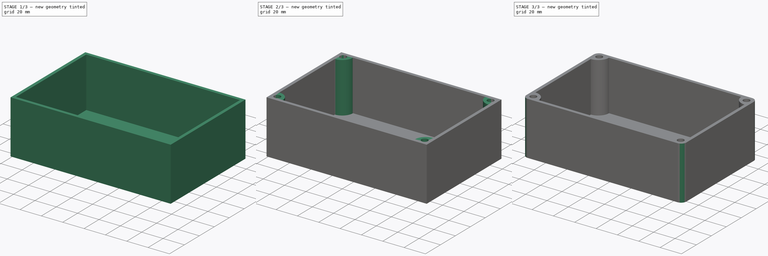
[diagram: build sequence overview — one tinted view per stage of 3, left to right]
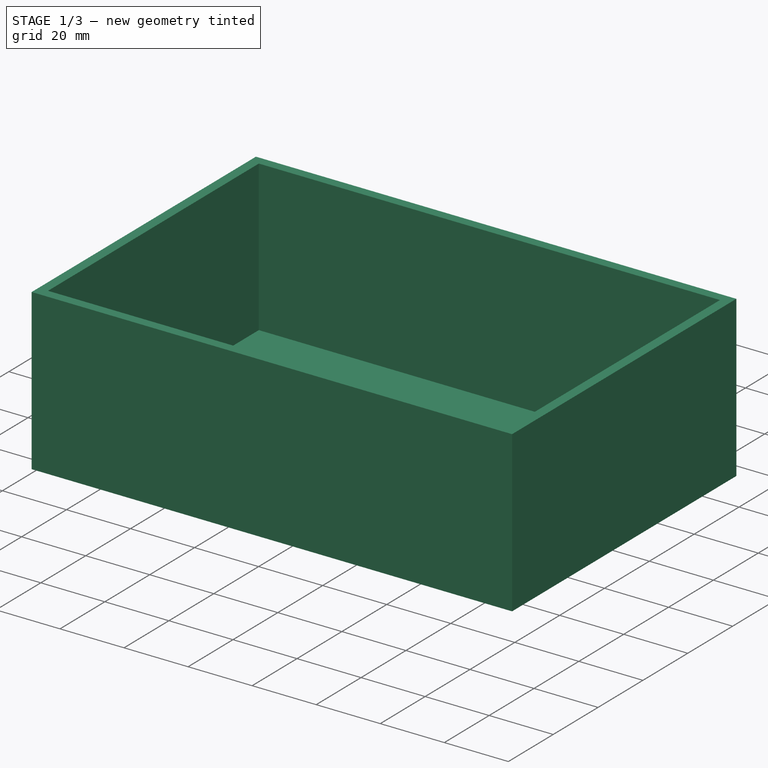
[diagram: stage 1 of 3 — iso view after this stage's code; geometry added in this stage tinted green]
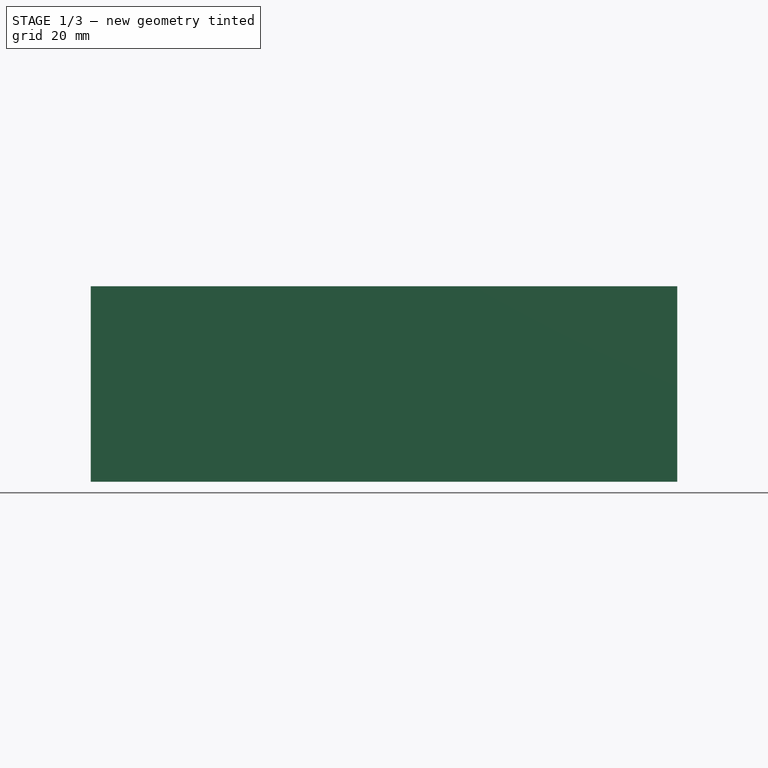
[diagram: stage 1 of 3 — front view after this stage's code; geometry added in this stage tinted green]
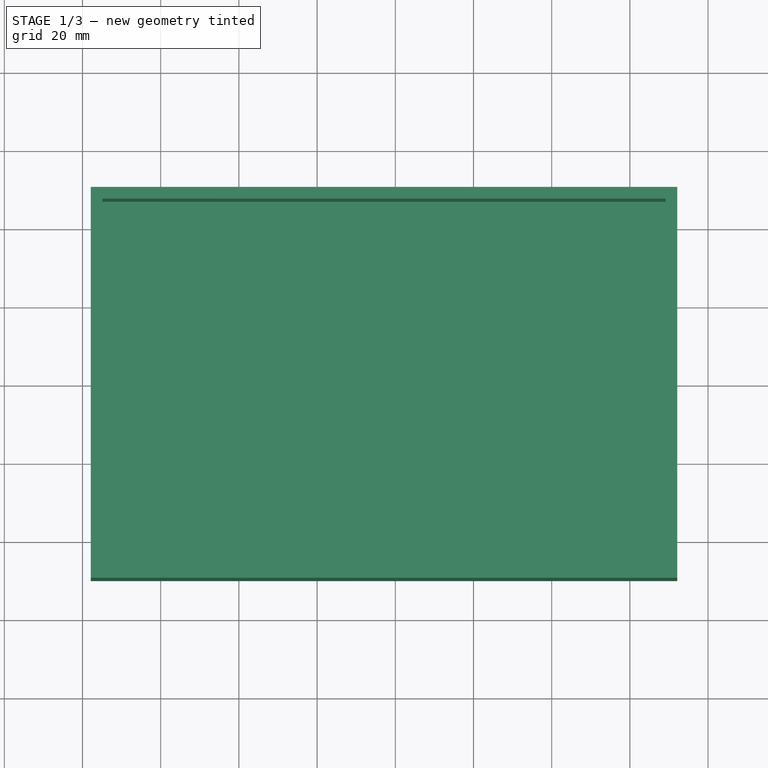
[diagram: stage 1 of 3 — top view after this stage's code; geometry added in this stage tinted green]
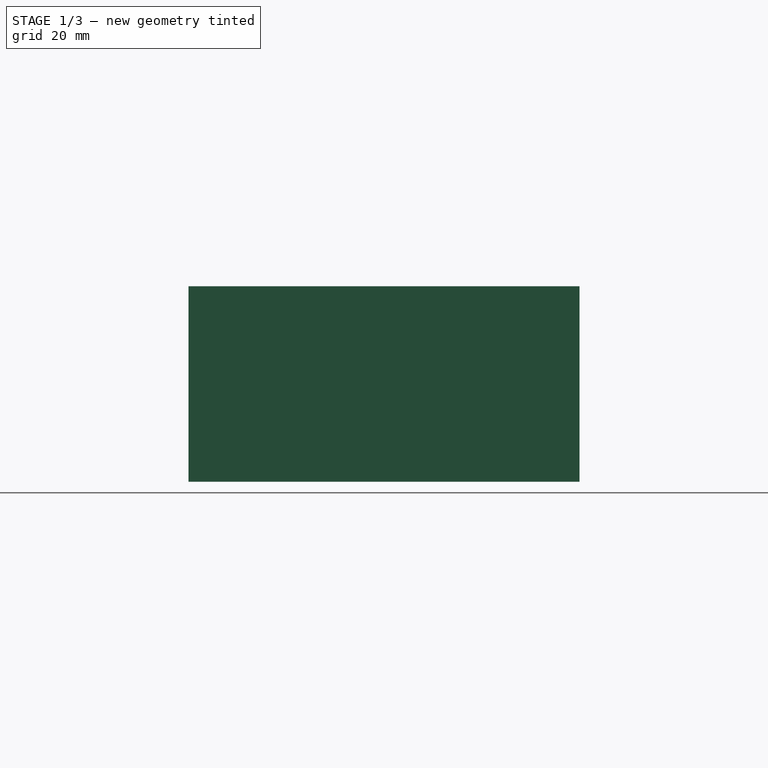
[diagram: stage 1 of 3 — right view after this stage's code; geometry added in this stage tinted green]
FCSTD DOCUMENT  (FreeCAD 1.0R39319 (Git))
Label: BOX
License: All rights reserved
LicenseURL: https://en.wikipedia.org/wiki/All_rights_reserved
objects: Sketcher::SketchObject×3, PartDesign::Pad×2, PartDesign::Fillet×2, PartDesign::Body×2, PartDesign::Thickness×1, PartDesign::Mirrored×1, PartDesign::Hole×1
note: 28 computed .brp shape members not serialized (recipe doc carries the construction recipe); baked Part::Feature solids carry a one-line shape summary decoded from their .brp

FEATURE [Sketcher::SketchObject] Sketch
  ArcFitTolerance = 1e-06
  AttachmentSupport = -> [XY_Plane]
  FullyConstrained = false
  MakeInternals = false
  MapMode = 5
  sketch-geometry (4):
    g0: LineSegment StartX=-77.8878 StartY=50.0556 StartZ=0 EndX=-77.8878 EndY=-49.9444 EndZ=0
    g1: LineSegment StartX=-77.8878 StartY=-49.9444 StartZ=0 EndX=72.1122 EndY=-49.9444 EndZ=0
    g2: LineSegment StartX=72.1122 StartY=-49.9444 StartZ=0 EndX=72.1122 EndY=50.0556 EndZ=0
    g3: LineSegment StartX=72.1122 StartY=50.0556 StartZ=0 EndX=-77.8878 EndY=50.0556 EndZ=0
  constraints (10):
    c: Coincident(g0,g1)
    c: Coincident(g1,g2)
    c: Coincident(g2,g3)
    c: Coincident(g3,g0)
    c: Vertical(g0)
    c: Vertical(g2)
    c: Horizontal(g1)
    c: Horizontal(g3)
    c: Distance(g0,g2) = 150
    c: Distance(g1,g3) = 100
FEATURE [PartDesign::Pad] Pad
  Direction = (0,0,1)
  Length = 50
  Length2 = 10
  Profile = -> Sketch
  ReferenceAxis = -> Sketch [N_Axis]
  Refine = true
  Reversed = true
  Suppressed = false
  Type = 0
FEATURE [PartDesign::Thickness] Thickness
  Base = -> Pad [Face5]
  BaseFeature = -> Pad
  Intersection = false
  Join = 0
  Mode = 0
  Refine = true
  Reversed = true
  SupportTransform = false
  Suppressed = false
  Value = 3
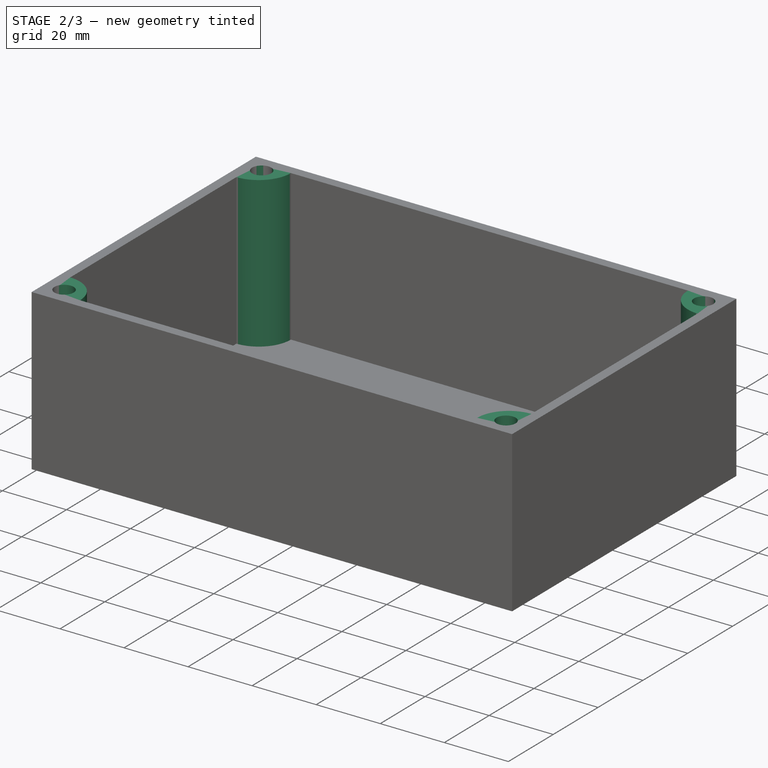
[diagram: stage 2 of 3 — iso view after this stage's code; geometry added in this stage tinted green]
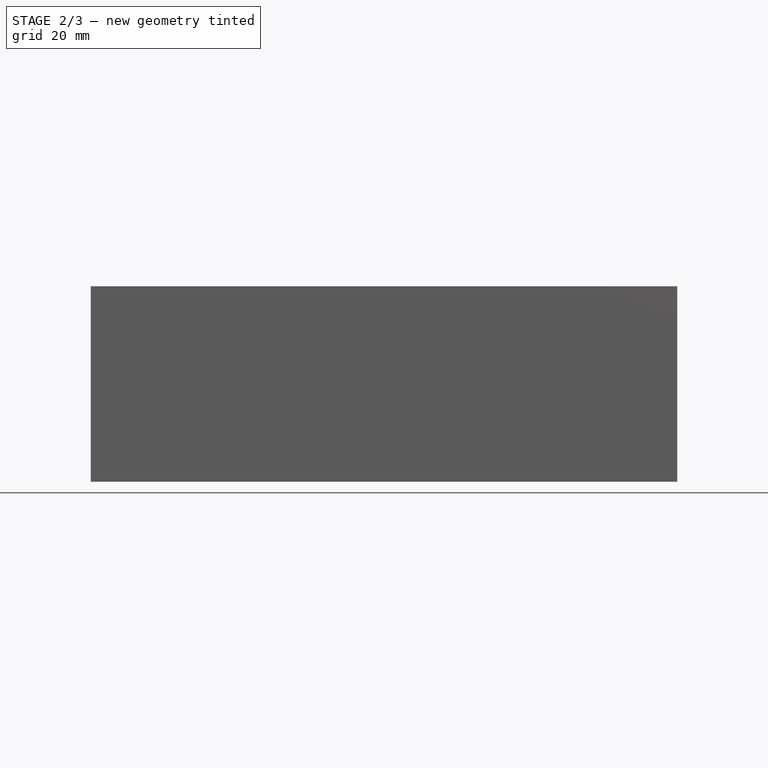
[diagram: stage 2 of 3 — front view after this stage's code; geometry added in this stage tinted green]
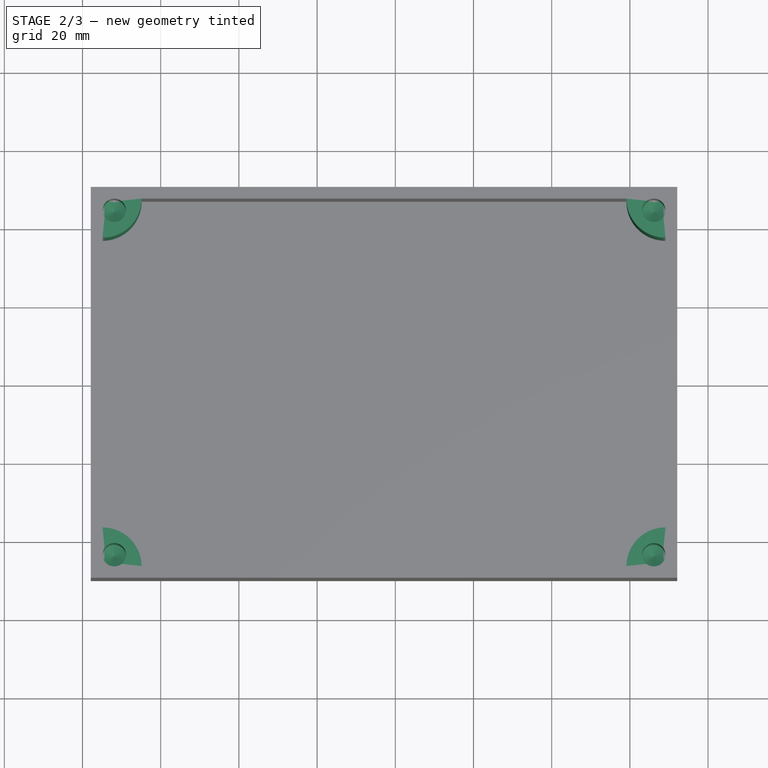
[diagram: stage 2 of 3 — top view after this stage's code; geometry added in this stage tinted green]
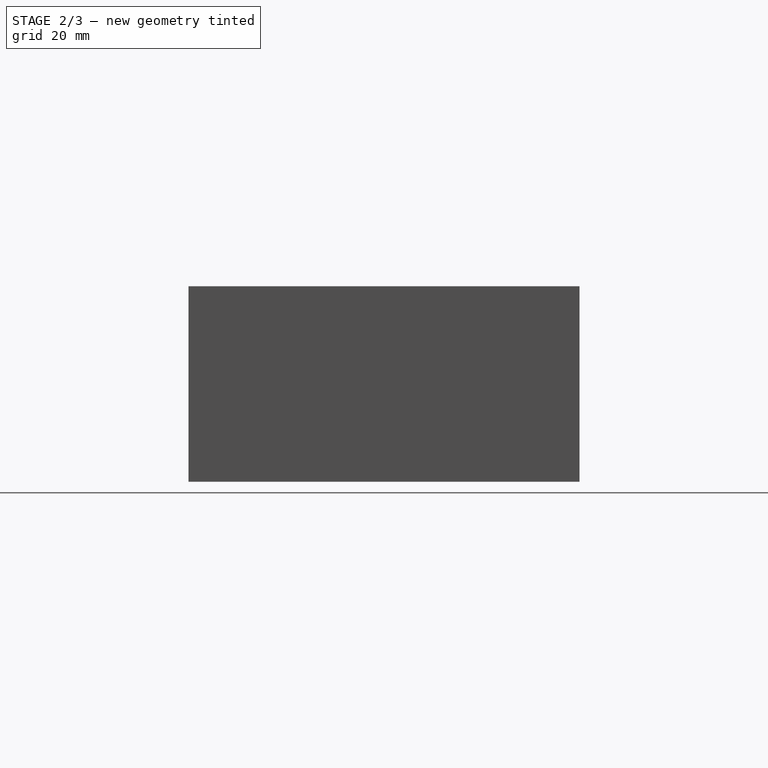
[diagram: stage 2 of 3 — right view after this stage's code; geometry added in this stage tinted green]
FEATURE [Sketcher::SketchObject] Sketch001
  ArcFitTolerance = 1e-06
  AttachmentSupport = -> [Thickness]
  ExternalGeometry = -> [Thickness]
  FullyConstrained = true
  MakeInternals = false
  MapMode = 5
  sketch-geometry (6):
    g0: LineSegment StartX=-74.8878 StartY=47.0556 StartZ=0 EndX=-64.8878 EndY=47.0556 EndZ=0
    g1: LineSegment StartX=-74.8878 StartY=47.0556 StartZ=0 EndX=-74.8878 EndY=37.0556 EndZ=0
    g2: LineSegment StartX=69.1122 StartY=47.0556 StartZ=0 EndX=59.1122 EndY=47.0556 EndZ=0
    g3: LineSegment StartX=69.1122 StartY=47.0556 StartZ=0 EndX=69.1122 EndY=37.0556 EndZ=0
    g4: ArcOfCircle CenterX=-74.8878 CenterY=47.0556 CenterZ=0 NormalX=0 NormalY=0 NormalZ=1 AngleXU=0 Radius=10 StartAngle=4.71239 EndAngle=6.28319
    g5: ArcOfCircle CenterX=69.1122 CenterY=47.0556 CenterZ=0 NormalX=0 NormalY=0 NormalZ=1 AngleXU=0 Radius=10 StartAngle=3.14159 EndAngle=4.71239
  constraints (19):
    c: Distance(g0) = 10
    c: Coincident(g0,g-4)
    c: PointOnObject(g0,g-4)
    c: Distance(g1) = 10
    c: Coincident(g1,g0)
    c: PointOnObject(g1,g-3)
    c: Distance(g2) = 10
    c: Coincident(g2,g-4)
    c: PointOnObject(g2,g-4)
    c: Distance(g3) = 10
    c: Coincident(g3,g2)
    c: Vertical(g3)
    c: Radius(g4) = 10
    c: Coincident(g4,g0)
    c: PointOnObject(g4,g-4)
    c: PointOnObject(g4,g-3)
    c: Coincident(g5,g2)
    c: PointOnObject(g5,g-4)
    c: Coincident(g5,g3)
FEATURE [PartDesign::Pad] Pad001
  BaseFeature = -> Thickness
  Direction = (0,0,1)
  Length = 47
  Length2 = 10
  Profile = -> Sketch001
  ReferenceAxis = -> Sketch001 [N_Axis]
  Refine = true
  Reversed = true
  Suppressed = false
  Type = 0
FEATURE [PartDesign::Mirrored] Mirrored
  BaseFeature = -> Pad001
  MirrorPlane = -> Sketch001 [H_Axis]
  Originals = -> [Pad001]
  Refine = true
  Suppressed = false
  TransformMode = 0
FEATURE [Sketcher::SketchObject] Sketch002
  ArcFitTolerance = 1e-06
  AttachmentSupport = -> [Mirrored]
  ExternalGeometry = -> [Mirrored]
  FullyConstrained = true
  MakeInternals = false
  MapMode = 5
  sketch-geometry (4):
    g0: Circle CenterX=-71.8878 CenterY=44.0556 CenterZ=0 NormalX=0 NormalY=0 NormalZ=1 AngleXU=0 Radius=2.5
    g1: Circle CenterX=66.1122 CenterY=44.0556 CenterZ=0 NormalX=0 NormalY=0 NormalZ=1 AngleXU=0 Radius=2.5
    g2: Circle CenterX=66.1122 CenterY=-44.0556 CenterZ=0 NormalX=0 NormalY=0 NormalZ=1 AngleXU=0 Radius=2.5
    g3: Circle CenterX=-71.8878 CenterY=-44.0556 CenterZ=0 NormalX=0 NormalY=0 NormalZ=1 AngleXU=0 Radius=2.5
  constraints (12):
    c: Diameter(g0) = 5
    c: Diameter(g1) = 5
    c: Diameter(g2) = 5
    c: Diameter(g3) = 5
    c: DistanceX(g-3,g0) = 3
    c: DistanceY(g0,g-3) = 3
    c: DistanceX(g1,g-4) = 3
    c: DistanceY(g1,g-4) = 3
    c: DistanceX(g-6,g3) = 3
    c: DistanceY(g-6,g3) = 3
    c: DistanceX(g2,g-5) = 3
    c: DistanceY(g-5,g2) = 3
FEATURE [PartDesign::Hole] Hole
  BaseFeature = -> Mirrored
  CustomThreadClearance = 0
  Depth = 25
  DepthType = 0
  Diameter = 6
  DrillForDepth = false
  DrillPoint = 1
  DrillPointAngle = 118
  HoleCutCountersinkAngle = 90
  HoleCutCustomValues = false
  HoleCutDepth = 0
  HoleCutDiameter = 6.1
  HoleCutType = 0
  ModelThread = false
  Profile = -> Sketch002
  Refine = true
  Suppressed = false
  Tapered = false
  TaperedAngle = 90
  ThreadClass = 0
  ThreadDepth = 25
  ThreadDepthType = 0
  ThreadDirection = 0
  ThreadFit = 0
  ThreadSize = 0
  ThreadType = 0
  Threaded = false
  UseCustomThreadClearance = false
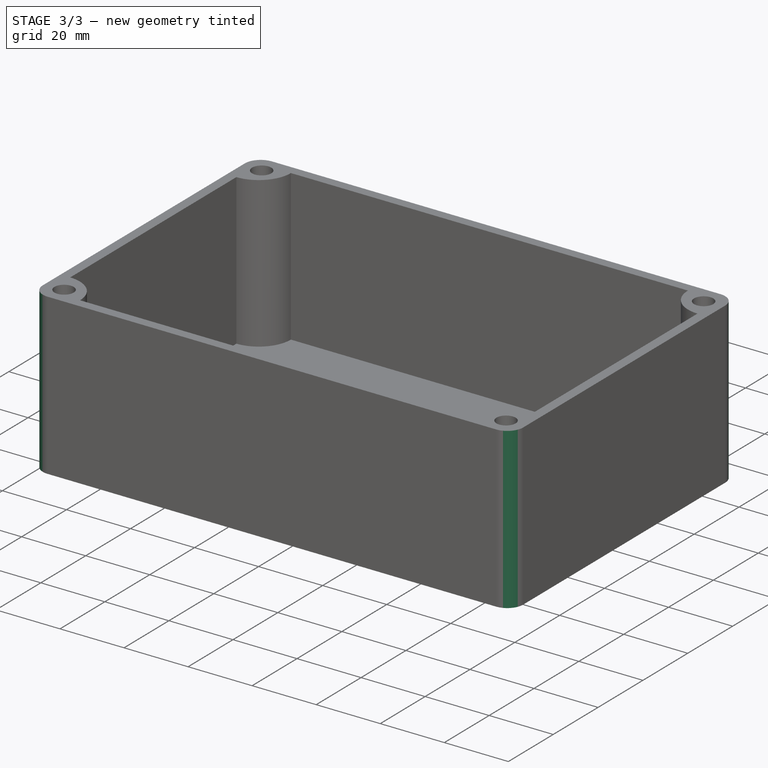
[diagram: stage 3 of 3 — iso view after this stage's code; geometry added in this stage tinted green]
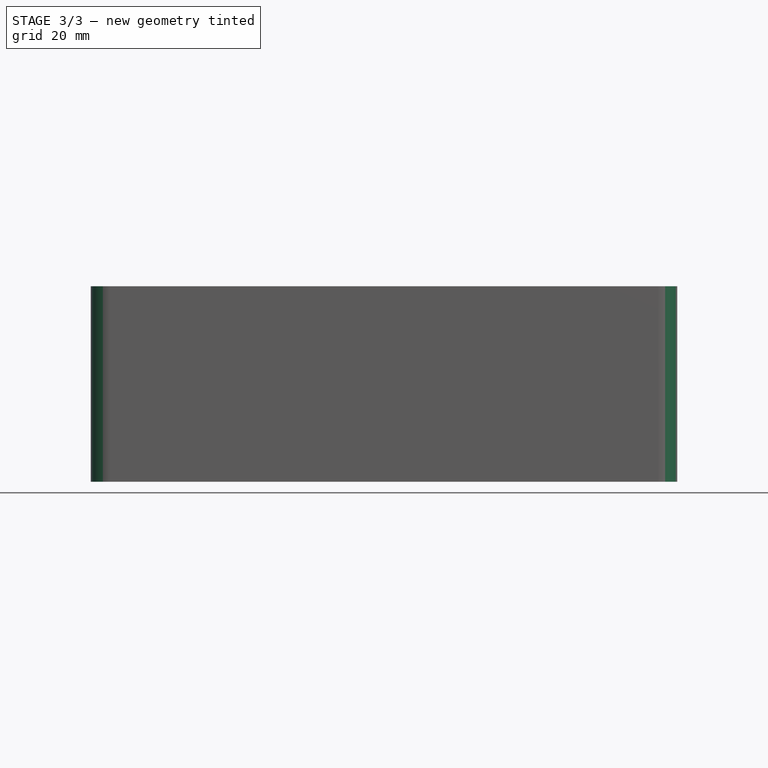
[diagram: stage 3 of 3 — front view after this stage's code; geometry added in this stage tinted green]
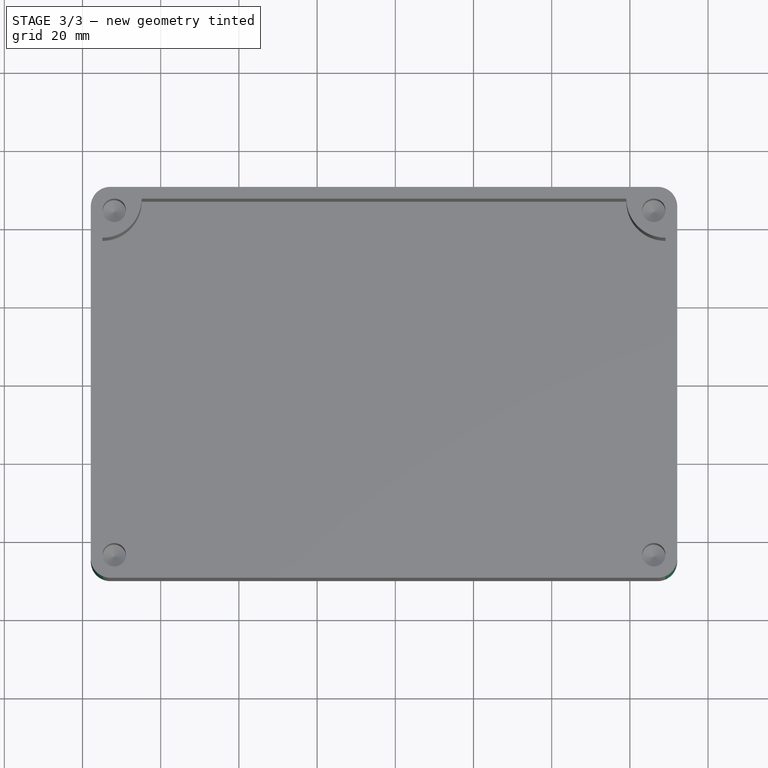
[diagram: stage 3 of 3 — top view after this stage's code; geometry added in this stage tinted green]
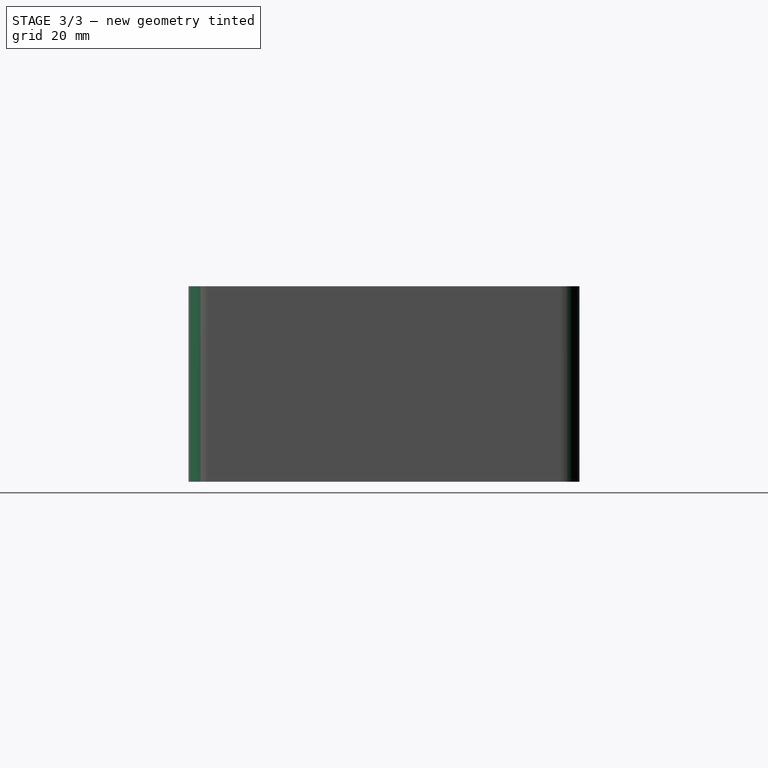
[diagram: stage 3 of 3 — right view after this stage's code; geometry added in this stage tinted green]
FEATURE [PartDesign::Fillet] Fillet
  Base = -> Hole [Edge5,Edge1]
  BaseFeature = -> Hole
  Radius = 5
  Refine = true
  SupportTransform = false
  Suppressed = false
  UseAllEdges = false
FEATURE [PartDesign::Fillet] Fillet001
  Base = -> Fillet [Edge24,Edge3]
  BaseFeature = -> Fillet
  Radius = 5
  Refine = true
  SupportTransform = false
  Suppressed = false
  UseAllEdges = false
FEATURE [PartDesign::Body] Body
  AllowCompound = false
  Group = -> [Sketch,Pad,Thickness,Sketch001,Pad001,Mirrored,Sketch002,Hole,Fillet,Fillet001]
  Origin = -> Origin
  Tip = -> Fillet001
FEATURE [PartDesign::Body] Body001
  AllowCompound = false
  Origin = -> Origin001
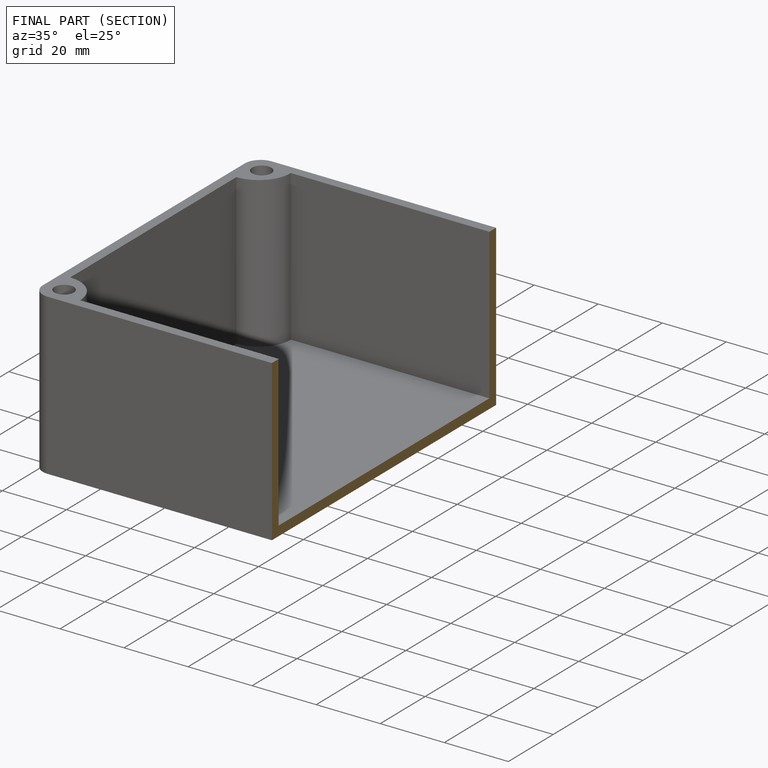
[diagram: finished part — half-section view (interior)]
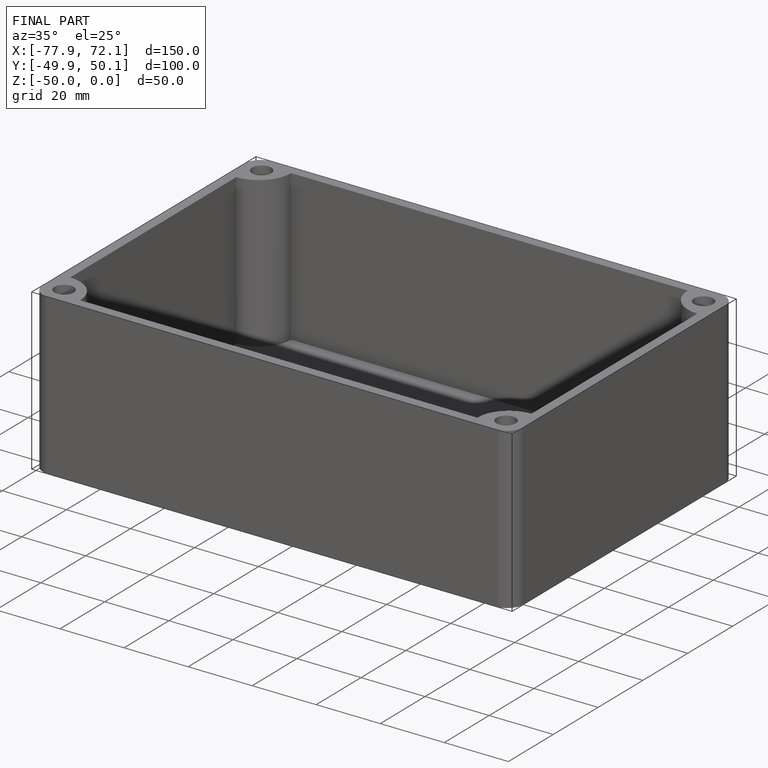
[diagram: finished part — iso view with bounding-box wireframe]
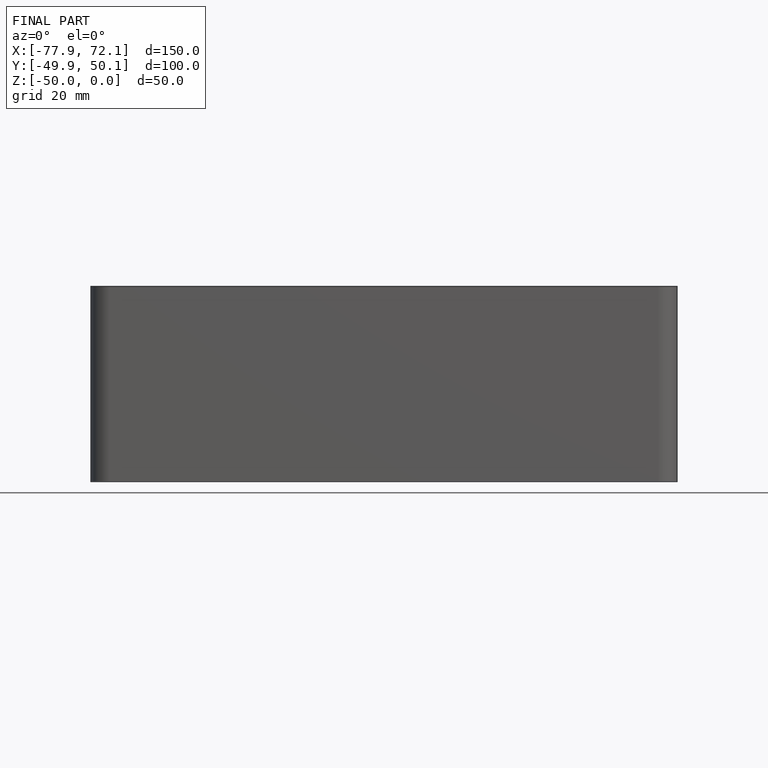
[diagram: finished part — front view with bounding-box wireframe]
